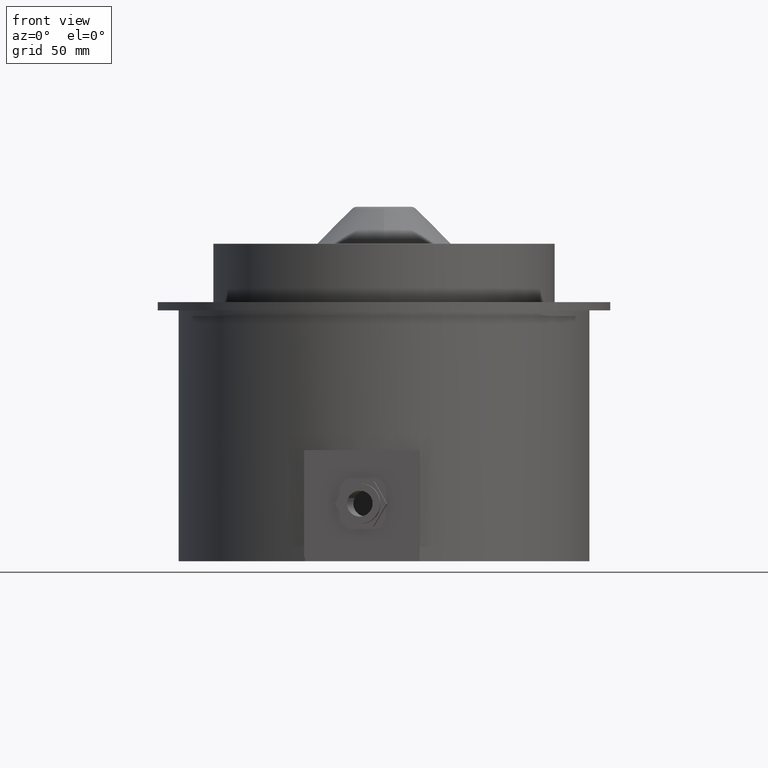
[diagram: clean part render]
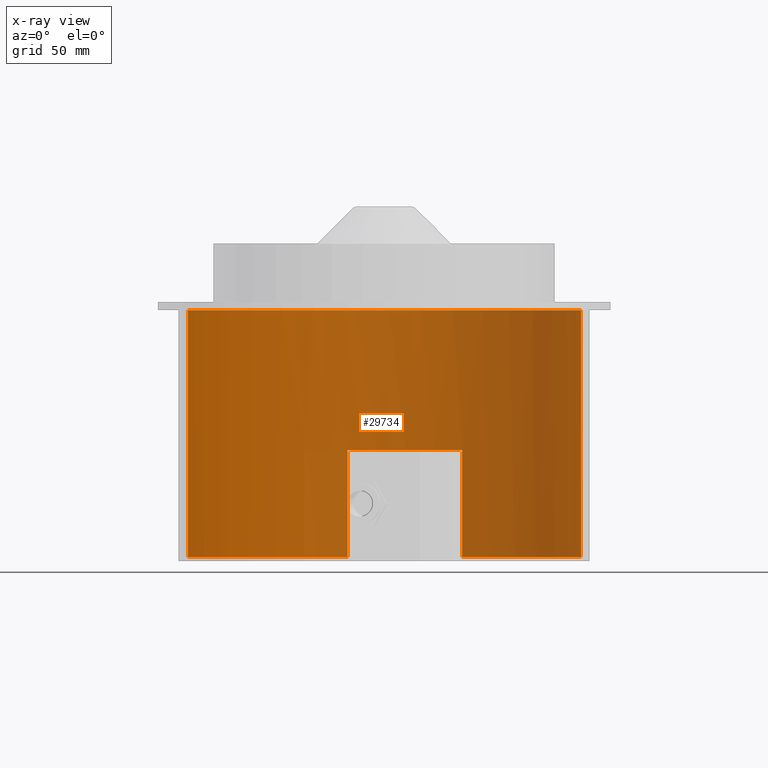
[diagram: x-ray — body ghosted, one internal face saturated and labeled with its STEP entity id]
A machine part, front view, then the same camera in x-ray: the body is ghosted and one INTERNAL B-rep face — a face not visible from any outside direction — is saturated and labeled: STEP entity #29734.
In plain terms, the highlighted cylindrical surface (partial cylindrical patch) has radius 96 mm, axis along (-0, -0, -1).
Its self-contained STEP definition (entity closure, byte-faithful):
#1103 = DIRECTION ( 'NONE',  ( -1.000000000000000000, 0.0000000000000000000, 1.445602896647339163E-16 ) ) ;
#1410 = FACE_OUTER_BOUND ( 'NONE', #32162, .T. ) ;
#1523 = DIRECTION ( 'NONE',  ( 1.000000000000000000, 0.0000000000000000000, 0.0000000000000000000 ) ) ;
#4739 = CIRCLE ( 'NONE', #9037, 96.00000000000000000 ) ;
#6992 = CARTESIAN_POINT ( 'NONE',  ( -96.00000000000000000, 0.0000000000000000000, 0.0000000000000000000 ) ) ;
#7087 = DIRECTION ( 'NONE',  ( -0.0000000000000000000, -0.0000000000000000000, -1.000000000000000000 ) ) ;
#7479 = VERTEX_POINT ( 'NONE', #52233 ) ;
#7952 = CARTESIAN_POINT ( 'NONE',  ( 96.00000000000000000, 1.175660927181459158E-14, 120.0000000000000000 ) ) ;
#8135 = CIRCLE ( 'NONE', #16452, 96.00000000000000000 ) ;
#9037 = AXIS2_PLACEMENT_3D ( 'NONE', #55575, #28337, #1103 ) ;
#9042 = DIRECTION ( 'NONE',  ( -0.0000000000000000000, -0.0000000000000000000, -1.000000000000000000 ) ) ;
#10135 = DIRECTION ( 'NONE',  ( 0.0000000000000000000, 0.0000000000000000000, 1.000000000000000000 ) ) ;
#10735 = AXIS2_PLACEMENT_3D ( 'NONE', #34345, #7087, #20659 ) ;
#11433 = CARTESIAN_POINT ( 'NONE',  ( -27.99999999999999645, -91.82592226599194873, 0.0000000000000000000 ) ) ;
#11978 = CARTESIAN_POINT ( 'NONE',  ( 27.99999999999999645, -91.82592226599194873, 0.0000000000000000000 ) ) ;
#15280 = EDGE_CURVE ( 'NONE', #15615, #34073, #48170, .T. ) ;
#15615 = VERTEX_POINT ( 'NONE', #11978 ) ;
#16452 = AXIS2_PLACEMENT_3D ( 'NONE', #55992, #28758, #1523 ) ;
#17192 = DIRECTION ( 'NONE',  ( 0.0000000000000000000, 0.0000000000000000000, 1.000000000000000000 ) ) ;
#17466 = EDGE_CURVE ( 'NONE', #37334, #33365, #8135, .T. ) ;
#18080 = CARTESIAN_POINT ( 'NONE',  ( 96.00000000000000000, 1.175660927181459158E-14, 120.0000000000000000 ) ) ;
#18370 = VECTOR ( 'NONE', #26009, 1000.000000000000000 ) ;
#18388 = DIRECTION ( 'NONE',  ( 0.0000000000000000000, 0.0000000000000000000, 1.000000000000000000 ) ) ;
#20659 = DIRECTION ( 'NONE',  ( -1.000000000000000000, 0.0000000000000000000, 0.0000000000000000000 ) ) ;
#21687 = ORIENTED_EDGE ( 'NONE', *, *, #17466, .T. ) ;
#22061 = ORIENTED_EDGE ( 'NONE', *, *, #45916, .T. ) ;
#24223 = CYLINDRICAL_SURFACE ( 'NONE', #10735, 96.00000000000000000 ) ;
#25597 = ORIENTED_EDGE ( 'NONE', *, *, #54132, .F. ) ;
#25720 = EDGE_CURVE ( 'NONE', #54969, #58477, #54625, .T. ) ;
#26009 = DIRECTION ( 'NONE',  ( -0.0000000000000000000, -0.0000000000000000000, -1.000000000000000000 ) ) ;
#26072 = VECTOR ( 'NONE', #9042, 1000.000000000000000 ) ;
#26705 = ORIENTED_EDGE ( 'NONE', *, *, #38767, .F. ) ;
#26960 = LINE ( 'NONE', #18080, #37580 ) ;
#28337 = DIRECTION ( 'NONE',  ( -1.239088197126290817E-16, -0.0000000000000000000, -1.000000000000000000 ) ) ;
#28758 = DIRECTION ( 'NONE',  ( 0.0000000000000000000, 0.0000000000000000000, 1.000000000000000000 ) ) ;
#29734 = ADVANCED_FACE ( 'NONE', ( #1410 ), #24223, .F. ) ;
#29875 = ORIENTED_EDGE ( 'NONE', *, *, #25720, .T. ) ;
#30577 = EDGE_CURVE ( 'NONE', #15615, #7479, #46891, .T. ) ;
#31072 = CARTESIAN_POINT ( 'NONE',  ( 28.00000000000002132, -91.82592226599196295, 120.0000000000000000 ) ) ;
#32162 = EDGE_LOOP ( 'NONE', ( #21687, #45834, #35937, #47335, #22061, #29875, #26705, #25597 ) ) ;
#33365 = VERTEX_POINT ( 'NONE', #7952 ) ;
#34073 = VERTEX_POINT ( 'NONE', #49858 ) ;
#34345 = CARTESIAN_POINT ( 'NONE',  ( 0.0000000000000000000, 0.0000000000000000000, 120.0000000000000000 ) ) ;
#34787 = VECTOR ( 'NONE', #17192, 1000.000000000000000 ) ;
#35494 = CARTESIAN_POINT ( 'NONE',  ( -96.00000000000000000, 0.0000000000000000000, 120.0000000000000000 ) ) ;
#35937 = ORIENTED_EDGE ( 'NONE', *, *, #15280, .F. ) ;
#37328 = CARTESIAN_POINT ( 'NONE',  ( 0.0000000000000000000, 0.0000000000000000000, 0.0000000000000000000 ) ) ;
#37334 = VERTEX_POINT ( 'NONE', #35494 ) ;
#37580 = VECTOR ( 'NONE', #58929, 1000.000000000000000 ) ;
#37668 = AXIS2_PLACEMENT_3D ( 'NONE', #45601, #18388, #50185 ) ;
#38767 = EDGE_CURVE ( 'NONE', #53566, #58477, #42746, .T. ) ;
#39277 = AXIS2_PLACEMENT_3D ( 'NONE', #37328, #10135, #41943 ) ;
#40352 = CARTESIAN_POINT ( 'NONE',  ( -27.99999999999999289, -91.82592226599196295, 51.99999999999999289 ) ) ;
#41943 = DIRECTION ( 'NONE',  ( 1.000000000000000000, 0.0000000000000000000, 0.0000000000000000000 ) ) ;
#42746 = CIRCLE ( 'NONE', #39277, 96.00000000000000000 ) ;
#45601 = CARTESIAN_POINT ( 'NONE',  ( 0.0000000000000000000, 0.0000000000000000000, 0.0000000000000000000 ) ) ;
#45834 = ORIENTED_EDGE ( 'NONE', *, *, #51312, .T. ) ;
#45916 = EDGE_CURVE ( 'NONE', #7479, #54969, #4739, .T. ) ;
#46891 = LINE ( 'NONE', #31072, #34787 ) ;
#47335 = ORIENTED_EDGE ( 'NONE', *, *, #30577, .T. ) ;
#48170 = CIRCLE ( 'NONE', #37668, 96.00000000000000000 ) ;
#48824 = LINE ( 'NONE', #54604, #26072 ) ;
#49858 = CARTESIAN_POINT ( 'NONE',  ( 96.00000000000000000, 1.175660927181459158E-14, 0.0000000000000000000 ) ) ;
#50185 = DIRECTION ( 'NONE',  ( 1.000000000000000000, 0.0000000000000000000, 0.0000000000000000000 ) ) ;
#51312 = EDGE_CURVE ( 'NONE', #33365, #34073, #26960, .T. ) ;
#52233 = CARTESIAN_POINT ( 'NONE',  ( 28.00000000000002132, -91.82592226599196295, 51.99999999999999289 ) ) ;
#53243 = CARTESIAN_POINT ( 'NONE',  ( -27.99999999999998224, -91.82592226599196295, 120.0000000000000000 ) ) ;
#53566 = VERTEX_POINT ( 'NONE', #6992 ) ;
#54132 = EDGE_CURVE ( 'NONE', #37334, #53566, #48824, .T. ) ;
#54604 = CARTESIAN_POINT ( 'NONE',  ( -96.00000000000000000, 0.0000000000000000000, 120.0000000000000000 ) ) ;
#54625 = LINE ( 'NONE', #53243, #18370 ) ;
#54969 = VERTEX_POINT ( 'NONE', #40352 ) ;
#55575 = CARTESIAN_POINT ( 'NONE',  ( 0.0000000000000000000, 0.0000000000000000000, 51.99999999999999289 ) ) ;
#55992 = CARTESIAN_POINT ( 'NONE',  ( 0.0000000000000000000, 0.0000000000000000000, 120.0000000000000000 ) ) ;
#58477 = VERTEX_POINT ( 'NONE', #11433 ) ;
#58929 = DIRECTION ( 'NONE',  ( -0.0000000000000000000, -0.0000000000000000000, -1.000000000000000000 ) ) ;